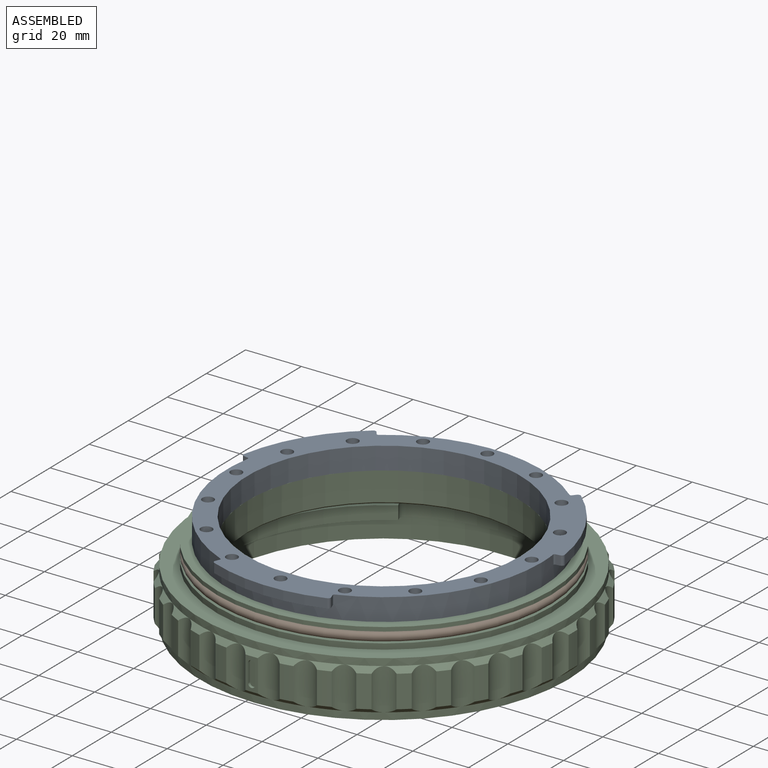
[diagram: assembled view]
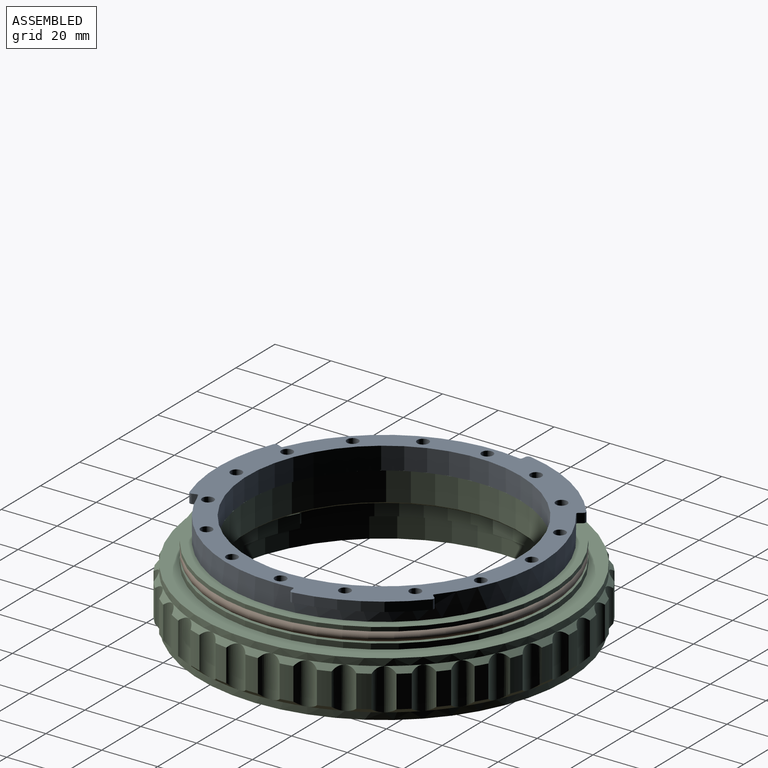
[diagram: assembled view, second angle]
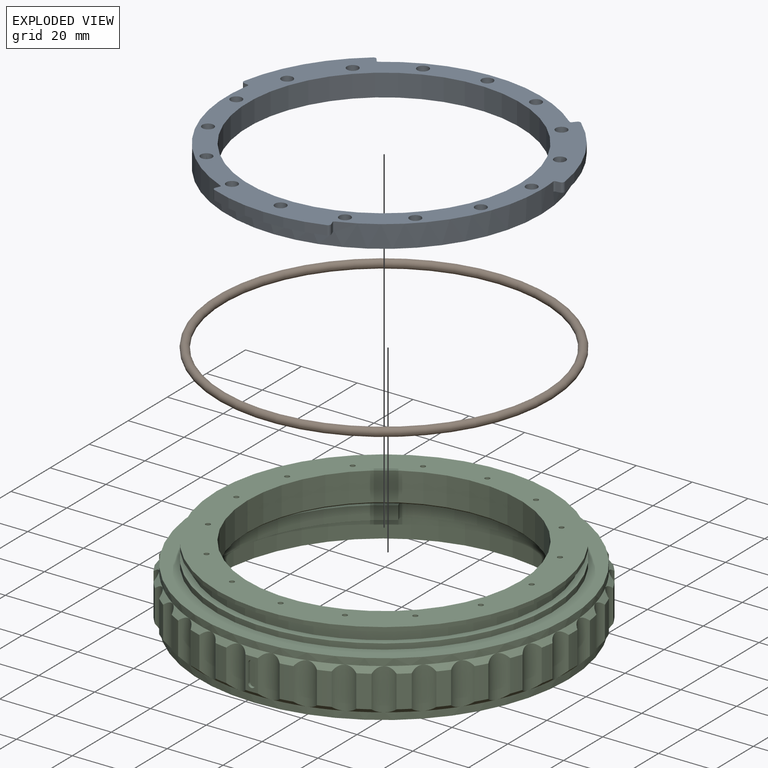
[diagram: exploded view]
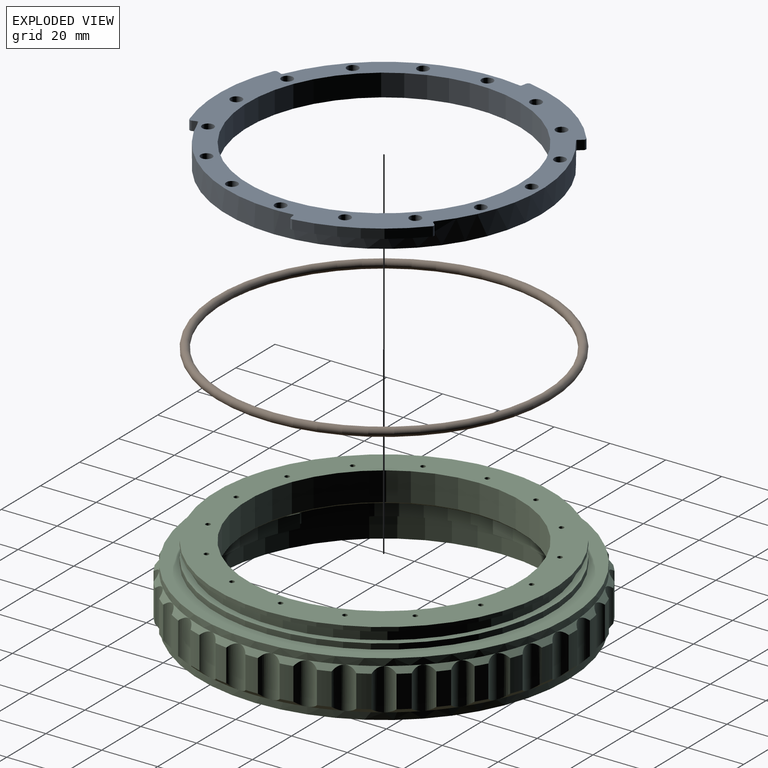
[diagram: exploded view, second angle]
ASSEMBLY  parts=3 mates=4
PART A: 76 faces, bbox 117.3x115.9x8 mm
  f0: plane 42.5x7.72mm, normal (0,0,-1), area 132.9mm2, adj f4,f8,f58,f63,f65,f68,f71,f74
  f1: cylinder r=59.5mm len=35.1mm, axis (0,0,-1), area 141mm2, adj f3,f7,f64,f67
  f2: cylinder r=59.5mm len=36.25mm, axis (0,0,-1), area 141mm2, adj f7,f9,f66,f69
  f3: plane 37.36x24.69mm, normal (0,0,-1), area 132.9mm2, adj f1,f4,f61,f62,f64,f67,f70,f73
  f4: cylinder r=56.4mm len=112.8mm, axis (0,0,-1), area 2404.8mm2, adj f0,f3,f5,f7,f9,f70,f71,f72
  f5: plane 112.8x112.8mm, normal (0,0,-1), area 2404.8mm2, adj f4,f6,f10,f13,f16,f19,f22,f25
  f6: cylinder r=48.85mm len=97.7mm, axis (0,0,-1), area 2455.5mm2, adj f5,f7
  f7: plane 117.27x115.9mm, normal (0,0,1), area 2683.8mm2, adj f1,f2,f4,f6,f8,f12,f15,f18
  f8: cylinder r=59.5mm len=41.19mm, axis (0,0,-1), area 141mm2, adj f0,f7,f65,f68
  f9: plane 38.38x22.77mm, normal (0,0,-1), area 132.9mm2, adj f2,f4,f59,f60,f66,f69,f72,f75
  f10: cylinder r=1.35mm len=4.2mm, axis (0,0,1), area 35.6mm2, adj f5,f11
  f11: plane 4.1x4.1mm, normal (0,0,1), area 7.5mm2, adj f10,f12
  f12: cylinder r=2.05mm len=4.1mm, axis (0,0,1), area 48.9mm2, adj f7,f11
  f13: cylinder r=1.35mm len=4.2mm, axis (0,0,1), area 35.6mm2, adj f5,f14
  f14: plane 4.1x4.1mm, normal (0,0,1), area 7.5mm2, adj f13,f15
  f15: cylinder r=2.05mm len=4.1mm, axis (0,0,1), area 48.9mm2, adj f7,f14
  f16: cylinder r=1.35mm len=4.2mm, axis (0,0,1), area 35.6mm2, adj f5,f17
  f17: plane 4.1x4.1mm, normal (0,0,1), area 7.5mm2, adj f16,f18
  f18: cylinder r=2.05mm len=4.1mm, axis (0,0,1), area 48.9mm2, adj f7,f17
  f19: cylinder r=1.35mm len=4.2mm, axis (0,0,1), area 35.6mm2, adj f5,f20
  f20: plane 4.1x4.1mm, normal (0,0,1), area 7.5mm2, adj f19,f21
  f21: cylinder r=2.05mm len=4.1mm, axis (0,0,1), area 48.9mm2, adj f7,f20
  f22: cylinder r=1.35mm len=4.2mm, axis (0,0,1), area 35.6mm2, adj f5,f23
  f23: plane 4.1x4.1mm, normal (0,0,1), area 7.5mm2, adj f22,f24
  f24: cylinder r=2.05mm len=4.1mm, axis (0,0,1), area 48.9mm2, adj f7,f23
  f25: cylinder r=1.35mm len=4.2mm, axis (0,0,1), area 35.6mm2, adj f5,f26
  f26: plane 4.1x4.1mm, normal (0,0,1), area 7.5mm2, adj f25,f27
  f27: cylinder r=2.05mm len=4.1mm, axis (0,0,1), area 48.9mm2, adj f7,f26
  f28: cylinder r=1.35mm len=4.2mm, axis (0,0,1), area 35.6mm2, adj f5,f29
  f29: plane 4.1x4.1mm, normal (0,0,1), area 7.5mm2, adj f28,f30
  f30: cylinder r=2.05mm len=4.1mm, axis (0,0,1), area 48.9mm2, adj f7,f29
  f31: cylinder r=1.35mm len=4.2mm, axis (0,0,1), area 35.6mm2, adj f5,f32
  f32: plane 4.1x4.1mm, normal (0,0,1), area 7.5mm2, adj f31,f33
  f33: cylinder r=2.05mm len=4.1mm, axis (0,0,1), area 48.9mm2, adj f7,f32
  f34: cylinder r=1.35mm len=4.2mm, axis (0,0,1), area 35.6mm2, adj f5,f35
  f35: plane 4.1x4.1mm, normal (0,0,1), area 7.5mm2, adj f34,f36
  f36: cylinder r=2.05mm len=4.1mm, axis (0,0,1), area 48.9mm2, adj f7,f35
  f37: cylinder r=1.35mm len=4.2mm, axis (0,0,1), area 35.6mm2, adj f5,f38
  f38: plane 4.1x4.1mm, normal (0,0,1), area 7.5mm2, adj f37,f39
  f39: cylinder r=2.05mm len=4.1mm, axis (0,0,1), area 48.9mm2, adj f7,f38
  f40: cylinder r=1.35mm len=4.2mm, axis (0,0,1), area 35.6mm2, adj f5,f41
  f41: plane 4.1x4.1mm, normal (0,0,1), area 7.5mm2, adj f40,f42
  f42: cylinder r=2.05mm len=4.1mm, axis (0,0,1), area 48.9mm2, adj f7,f41
  f43: cylinder r=1.35mm len=4.2mm, axis (0,0,1), area 35.6mm2, adj f5,f44
  f44: plane 4.1x4.1mm, normal (0,0,1), area 7.5mm2, adj f43,f45
  f45: cylinder r=2.05mm len=4.1mm, axis (0,0,1), area 48.9mm2, adj f7,f44
  f46: cylinder r=1.35mm len=4.2mm, axis (0,0,1), area 35.6mm2, adj f5,f47
  f47: plane 4.1x4.1mm, normal (0,0,1), area 7.5mm2, adj f46,f48
  f48: cylinder r=2.05mm len=4.1mm, axis (0,0,1), area 48.9mm2, adj f7,f47
  f49: cylinder r=1.35mm len=4.2mm, axis (0,0,1), area 35.6mm2, adj f5,f50
  f50: plane 4.1x4.1mm, normal (0,0,1), area 7.5mm2, adj f49,f51
  f51: cylinder r=2.05mm len=4.1mm, axis (0,0,1), area 48.9mm2, adj f7,f50
  f52: cylinder r=1.35mm len=4.2mm, axis (0,0,1), area 35.6mm2, adj f5,f53
  f53: plane 4.1x4.1mm, normal (0,0,1), area 7.5mm2, adj f52,f54
  f54: cylinder r=2.05mm len=4.1mm, axis (0,0,1), area 48.9mm2, adj f7,f53
  f55: cylinder r=1.35mm len=4.2mm, axis (0,0,1), area 35.6mm2, adj f5,f56
  f56: plane 4.1x4.1mm, normal (0,0,1), area 7.5mm2, adj f55,f57
  f57: cylinder r=2.05mm len=4.1mm, axis (0,0,1), area 48.9mm2, adj f7,f56
  f58: plane 3.35x1.5mm, normal (-0.94,-0.34,0), area 5.3mm2, adj f0,f7,f68,f74
  f59: plane 3.35x1.58mm, normal (-0.12,0.99,0), area 5.3mm2, adj f7,f9,f69,f75
  f60: plane 3.35x1.21mm, normal (0.76,-0.65,0), area 5.3mm2, adj f7,f9,f66,f72
  f61: plane 3.35x1.27mm, normal (-0.8,-0.6,0), area 5.3mm2, adj f3,f7,f67,f73
  f62: plane 3.35x1.57mm, normal (0.18,0.98,0), area 5.3mm2, adj f3,f7,f64,f70
  f63: plane 3.35x1.47mm, normal (0.92,-0.39,0), area 5.3mm2, adj f0,f7,f65,f71
  f64: cylinder r=1mm len=3.35mm, axis (0,0,-1), area 5.3mm2, adj f1,f3,f7,f62
  f65: cylinder r=1mm len=3.35mm, axis (0,0,-1), area 5.3mm2, adj f0,f7,f8,f63
  f66: cylinder r=1mm len=3.35mm, axis (0,0,-1), area 5.3mm2, adj f2,f7,f9,f60
  f67: cylinder r=1mm len=3.35mm, axis (0,0,-1), area 5.3mm2, adj f1,f3,f7,f61
  f68: cylinder r=1mm len=3.35mm, axis (0,0,-1), area 5.3mm2, adj f0,f7,f8,f58
  f69: cylinder r=1mm len=3.35mm, axis (0,0,-1), area 5.3mm2, adj f2,f7,f9,f59
  f70: cylinder r=0.5mm len=3.35mm, axis (0,0,-1), area 2.6mm2, adj f3,f4,f7,f62
  f71: cylinder r=0.5mm len=3.35mm, axis (0,0,-1), area 2.6mm2, adj f0,f4,f7,f63
  f72: cylinder r=0.5mm len=3.35mm, axis (0,0,-1), area 2.6mm2, adj f4,f7,f9,f60
  f73: cylinder r=0.5mm len=3.35mm, axis (0,0,-1), area 2.6mm2, adj f3,f4,f7,f61
  f74: cylinder r=0.5mm len=3.35mm, axis (0,0,-1), area 2.6mm2, adj f0,f4,f7,f58
  f75: cylinder r=0.5mm len=3.35mm, axis (0,0,-1), area 2.6mm2, adj f4,f7,f9,f59
PART B: 1 faces, bbox 129.9x129.9x3 mm
  f0: torus R=58.5mm, axis (0,0,1), area 3464.2mm2
PART C: 219 faces, bbox 135.5x135.5x27.3 mm
  f0: cylinder r=67.75mm len=11.5mm, axis (0,0,-1), area 30.3mm2, adj f110,f111,f159,f160,f214,f215,f217,f218
  f1: plane 120.3x120.3mm, normal (0,0,-1), area 727.9mm2, adj f2,f3,f4,f122,f195,f196,f197,f198
  f2: cylinder r=56.75mm len=49.5mm, axis (0,0,-1), area 290.6mm2, adj f1,f123,f197,f201
  f3: cylinder r=56.75mm len=48.78mm, axis (0,0,-1), area 290.6mm2, adj f1,f123,f198,f203
  f4: cylinder r=56.75mm len=56.75mm, axis (0,0,-1), area 290.6mm2, adj f1,f123,f195,f200
  f5: cylinder r=67.75mm len=11.5mm, axis (0,0,-1), area 51.4mm2, adj f7,f8,f159,f194
  f6: cone r=67.75mm half-angle=45deg, axis (0,0,-1), area 16.3mm2, adj f10,f112,f193,f194
  f7: cone r=67.75mm half-angle=45deg, axis (0,0,-1), area 16.3mm2, adj f5,f112,f159,f194
  f8: cone r=66mm half-angle=45deg, axis (0,0,1), area 16.3mm2, adj f5,f120,f159,f194
  f9: cone r=66mm half-angle=45deg, axis (0,0,1), area 16.3mm2, adj f10,f120,f193,f194
  f10: cylinder r=67.75mm len=11.5mm, axis (0,0,-1), area 51.4mm2, adj f6,f9,f193,f194
  f11: cone r=67.75mm half-angle=45deg, axis (0,0,-1), area 16.3mm2, adj f13,f112,f192,f193
  f12: cone r=66mm half-angle=45deg, axis (0,0,1), area 16.3mm2, adj f13,f120,f192,f193
  f13: cylinder r=67.75mm len=11.5mm, axis (0,0,-1), area 51.4mm2, adj f11,f12,f192,f193
  f14: cone r=67.75mm half-angle=45deg, axis (0,0,-1), area 16.3mm2, adj f16,f112,f191,f192
  f15: cone r=66mm half-angle=45deg, axis (0,0,1), area 16.3mm2, adj f16,f120,f191,f192
  f16: cylinder r=67.75mm len=11.5mm, axis (0,0,-1), area 51.4mm2, adj f14,f15,f191,f192
  f17: cone r=67.75mm half-angle=45deg, axis (0,0,-1), area 16.3mm2, adj f19,f112,f190,f191
  f18: cone r=66mm half-angle=45deg, axis (0,0,1), area 16.3mm2, adj f19,f120,f190,f191
  f19: cylinder r=67.75mm len=11.5mm, axis (0,0,-1), area 51.4mm2, adj f17,f18,f190,f191
  f20: cone r=67.75mm half-angle=45deg, axis (0,0,-1), area 16.3mm2, adj f22,f112,f189,f190
  f21: cone r=66mm half-angle=45deg, axis (0,0,1), area 16.3mm2, adj f22,f120,f189,f190
  f22: cylinder r=67.75mm len=11.5mm, axis (0,0,-1), area 51.4mm2, adj f20,f21,f189,f190
  f23: cone r=67.75mm half-angle=45deg, axis (0,0,-1), area 16.3mm2, adj f25,f112,f188,f189
  f24: cone r=66mm half-angle=45deg, axis (0,0,1), area 16.3mm2, adj f25,f120,f188,f189
  f25: cylinder r=67.75mm len=11.5mm, axis (0,0,-1), area 51.4mm2, adj f23,f24,f188,f189
  f26: cone r=67.75mm half-angle=45deg, axis (0,0,-1), area 16.3mm2, adj f28,f112,f187,f188
  f27: cone r=66mm half-angle=45deg, axis (0,0,1), area 16.3mm2, adj f28,f120,f187,f188
  f28: cylinder r=67.75mm len=11.5mm, axis (0,0,-1), area 51.4mm2, adj f26,f27,f187,f188
  f29: cone r=67.75mm half-angle=45deg, axis (0,0,-1), area 16.3mm2, adj f31,f112,f186,f187
  f30: cone r=66mm half-angle=45deg, axis (0,0,1), area 16.3mm2, adj f31,f120,f186,f187
  f31: cylinder r=67.75mm len=11.5mm, axis (0,0,-1), area 51.4mm2, adj f29,f30,f186,f187
  f32: cone r=67.75mm half-angle=45deg, axis (0,0,-1), area 16.3mm2, adj f34,f112,f185,f186
  f33: cone r=66mm half-angle=45deg, axis (0,0,1), area 16.3mm2, adj f34,f120,f185,f186
  f34: cylinder r=67.75mm len=11.5mm, axis (0,0,-1), area 51.4mm2, adj f32,f33,f185,f186
  f35: cone r=67.75mm half-angle=45deg, axis (0,0,-1), area 16.3mm2, adj f37,f112,f184,f185
  f36: cone r=66mm half-angle=45deg, axis (0,0,1), area 16.3mm2, adj f37,f120,f184,f185
  f37: cylinder r=67.75mm len=11.5mm, axis (0,0,-1), area 51.4mm2, adj f35,f36,f184,f185
  f38: cone r=67.75mm half-angle=45deg, axis (0,0,-1), area 16.3mm2, adj f40,f112,f183,f184
  f39: cone r=66mm half-angle=45deg, axis (0,0,1), area 16.3mm2, adj f40,f120,f183,f184
  f40: cylinder r=67.75mm len=11.5mm, axis (0,0,-1), area 51.4mm2, adj f38,f39,f183,f184
  f41: cone r=67.75mm half-angle=45deg, axis (0,0,-1), area 16.3mm2, adj f43,f112,f182,f183
  f42: cone r=66mm half-angle=45deg, axis (0,0,1), area 16.3mm2, adj f43,f120,f182,f183
  f43: cylinder r=67.75mm len=11.5mm, axis (0,0,-1), area 51.4mm2, adj f41,f42,f182,f183
  f44: cone r=67.75mm half-angle=45deg, axis (0,0,-1), area 16.3mm2, adj f46,f112,f181,f182
  f45: cone r=66mm half-angle=45deg, axis (0,0,1), area 16.3mm2, adj f46,f120,f181,f182
  f46: cylinder r=67.75mm len=11.5mm, axis (0,0,-1), area 51.4mm2, adj f44,f45,f181,f182
  f47: cone r=67.75mm half-angle=45deg, axis (0,0,-1), area 16.3mm2, adj f49,f112,f180,f181
  f48: cone r=66mm half-angle=45deg, axis (0,0,1), area 16.3mm2, adj f49,f120,f180,f181
  f49: cylinder r=67.75mm len=11.5mm, axis (0,0,-1), area 51.4mm2, adj f47,f48,f180,f181
  f50: cone r=67.75mm half-angle=45deg, axis (0,0,-1), area 16.3mm2, adj f52,f112,f179,f180
  f51: cone r=66mm half-angle=45deg, axis (0,0,1), area 16.3mm2, adj f52,f120,f179,f180
  f52: cylinder r=67.75mm len=11.5mm, axis (0,0,-1), area 51.4mm2, adj f50,f51,f179,f180
  f53: cone r=67.75mm half-angle=45deg, axis (0,0,-1), area 16.3mm2, adj f55,f112,f178,f179
  f54: cone r=66mm half-angle=45deg, axis (0,0,1), area 16.3mm2, adj f55,f120,f178,f179
  f55: cylinder r=67.75mm len=11.5mm, axis (0,0,-1), area 51.4mm2, adj f53,f54,f178,f179
  f56: cone r=67.75mm half-angle=45deg, axis (0,0,-1), area 16.3mm2, adj f58,f112,f177,f178
  f57: cone r=66mm half-angle=45deg, axis (0,0,1), area 16.3mm2, adj f58,f120,f177,f178
  f58: cylinder r=67.75mm len=11.5mm, axis (0,0,-1), area 51.4mm2, adj f56,f57,f177,f178
  f59: cone r=67.75mm half-angle=45deg, axis (0,0,-1), area 16.3mm2, adj f61,f112,f176,f177
  f60: cone r=66mm half-angle=45deg, axis (0,0,1), area 16.3mm2, adj f61,f120,f176,f177
  f61: cylinder r=67.75mm len=11.5mm, axis (0,0,-1), area 51.4mm2, adj f59,f60,f176,f177
  f62: cone r=67.75mm half-angle=45deg, axis (0,0,-1), area 16.3mm2, adj f64,f112,f175,f176
  f63: cone r=66mm half-angle=45deg, axis (0,0,1), area 16.3mm2, adj f64,f120,f175,f176
  f64: cylinder r=67.75mm len=11.5mm, axis (0,0,-1), area 51.4mm2, adj f62,f63,f175,f176
  f65: cone r=67.75mm half-angle=45deg, axis (0,0,-1), area 16.3mm2, adj f67,f112,f174,f175
  f66: cone r=66mm half-angle=45deg, axis (0,0,1), area 16.3mm2, adj f67,f120,f174,f175
  f67: cylinder r=67.75mm len=11.5mm, axis (0,0,-1), area 51.4mm2, adj f65,f66,f174,f175
  f68: cone r=67.75mm half-angle=45deg, axis (0,0,-1), area 16.3mm2, adj f70,f112,f173,f174
  f69: cone r=66mm half-angle=45deg, axis (0,0,1), area 16.3mm2, adj f70,f120,f173,f174
  f70: cylinder r=67.75mm len=11.5mm, axis (0,0,-1), area 51.4mm2, adj f68,f69,f173,f174
  f71: cone r=67.75mm half-angle=45deg, axis (0,0,-1), area 16.3mm2, adj f73,f112,f172,f173
  f72: cone r=66mm half-angle=45deg, axis (0,0,1), area 16.3mm2, adj f73,f120,f172,f173
  f73: cylinder r=67.75mm len=11.5mm, axis (0,0,-1), area 51.4mm2, adj f71,f72,f172,f173
  f74: cone r=67.75mm half-angle=45deg, axis (0,0,-1), area 16.3mm2, adj f76,f112,f171,f172
  f75: cone r=66mm half-angle=45deg, axis (0,0,1), area 16.3mm2, adj f76,f120,f171,f172
  f76: cylinder r=67.75mm len=11.5mm, axis (0,0,-1), area 51.4mm2, adj f74,f75,f171,f172
  f77: cone r=67.75mm half-angle=45deg, axis (0,0,-1), area 16.3mm2, adj f79,f112,f170,f171
  f78: cone r=66mm half-angle=45deg, axis (0,0,1), area 16.3mm2, adj f79,f120,f170,f171
  f79: cylinder r=67.75mm len=11.5mm, axis (0,0,-1), area 51.4mm2, adj f77,f78,f170,f171
  f80: cone r=67.75mm half-angle=45deg, axis (0,0,-1), area 16.3mm2, adj f82,f112,f169,f170
  f81: cone r=66mm half-angle=45deg, axis (0,0,1), area 16.3mm2, adj f82,f120,f169,f170
  f82: cylinder r=67.75mm len=11.5mm, axis (0,0,-1), area 51.4mm2, adj f80,f81,f169,f170
  f83: cone r=67.75mm half-angle=45deg, axis (0,0,-1), area 16.3mm2, adj f85,f112,f168,f169
  f84: cone r=66mm half-angle=45deg, axis (0,0,1), area 16.3mm2, adj f85,f120,f168,f169
  f85: cylinder r=67.75mm len=11.5mm, axis (0,0,-1), area 51.4mm2, adj f83,f84,f168,f169
  f86: cone r=67.75mm half-angle=45deg, axis (0,0,-1), area 16.3mm2, adj f88,f112,f167,f168
  f87: cone r=66mm half-angle=45deg, axis (0,0,1), area 16.3mm2, adj f88,f120,f167,f168
  f88: cylinder r=67.75mm len=11.5mm, axis (0,0,-1), area 51.4mm2, adj f86,f87,f167,f168
  f89: cone r=67.75mm half-angle=45deg, axis (0,0,-1), area 16.3mm2, adj f91,f112,f166,f167
  f90: cone r=66mm half-angle=45deg, axis (0,0,1), area 16.3mm2, adj f91,f120,f166,f167
  f91: cylinder r=67.75mm len=11.5mm, axis (0,0,-1), area 51.4mm2, adj f89,f90,f166,f167
  f92: cone r=67.75mm half-angle=45deg, axis (0,0,-1), area 16.3mm2, adj f94,f112,f165,f166
  f93: cone r=66mm half-angle=45deg, axis (0,0,1), area 16.3mm2, adj f94,f120,f165,f166
  f94: cylinder r=67.75mm len=11.5mm, axis (0,0,-1), area 51.4mm2, adj f92,f93,f165,f166
  f95: cone r=67.75mm half-angle=45deg, axis (0,0,-1), area 16.3mm2, adj f97,f112,f164,f165
  f96: cone r=66mm half-angle=45deg, axis (0,0,1), area 16.3mm2, adj f97,f120,f164,f165
  f97: cylinder r=67.75mm len=11.5mm, axis (0,0,-1), area 51.4mm2, adj f95,f96,f164,f165
  f98: cone r=67.75mm half-angle=45deg, axis (0,0,-1), area 16.3mm2, adj f100,f112,f163,f164
  f99: cone r=66mm half-angle=45deg, axis (0,0,1), area 16.3mm2, adj f100,f120,f163,f164
  f100: cylinder r=67.75mm len=11.5mm, axis (0,0,-1), area 51.4mm2, adj f98,f99,f163,f164
  f101: cone r=67.75mm half-angle=45deg, axis (0,0,-1), area 16.3mm2, adj f103,f112,f162,f163
  f102: cone r=66mm half-angle=45deg, axis (0,0,1), area 16.3mm2, adj f103,f120,f162,f163
  f103: cylinder r=67.75mm len=11.5mm, axis (0,0,-1), area 51.4mm2, adj f101,f102,f162,f163
  f104: cone r=67.75mm half-angle=45deg, axis (0,0,-1), area 16.3mm2, adj f106,f112,f161,f162
  f105: cone r=66mm half-angle=45deg, axis (0,0,1), area 16.3mm2, adj f106,f120,f161,f162
  f106: cylinder r=67.75mm len=11.5mm, axis (0,0,-1), area 51.4mm2, adj f104,f105,f161,f162
  f107: cone r=67.75mm half-angle=45deg, axis (0,0,-1), area 16.3mm2, adj f109,f112,f160,f161
  f108: cone r=66mm half-angle=45deg, axis (0,0,1), area 16.3mm2, adj f109,f120,f160,f161
  f109: cylinder r=67.75mm len=11.5mm, axis (0,0,-1), area 51.4mm2, adj f107,f108,f160,f161
  f110: cone r=67.75mm half-angle=45deg, axis (0,0,-1), area 16.3mm2, adj f0,f112,f159,f160
  f111: cone r=66mm half-angle=45deg, axis (0,0,1), area 16.3mm2, adj f0,f120,f159,f160
  f112: cylinder r=66mm len=132mm, axis (0,0,-1), area 1036.7mm2, adj f6,f7,f11,f14,f17,f20,f23,f26
  f113: plane 120x120mm, normal (0,0,1), area 3759mm2, adj f114,f126,f128,f130,f132,f134,f136,f138
  f114: cylinder r=60mm len=120mm, axis (0,0,-1), area 546.6mm2, adj f113,f115
  f115: plane 120x120mm, normal (0,0,-1), area 850.5mm2, adj f114,f116
  f116: cylinder r=57.7mm len=115.4mm, axis (0,0,-1), area 1395.8mm2, adj f115,f117
  f117: plane 120x120mm, normal (0,0,1), area 850.5mm2, adj f116,f118
  f118: cylinder r=60mm len=120mm, axis (0,0,-1), area 754mm2, adj f117,f119
  f119: plane 132x132mm, normal (0,0,1), area 2375mm2, adj f112,f118
  f120: cylinder r=66mm len=132mm, axis (0,0,-1), area 1036.7mm2, adj f8,f9,f12,f15,f18,f21,f24,f27
  f121: plane 132x132mm, normal (0,0,-1), area 2318.4mm2, adj f120,f122
  f122: cylinder r=60.15mm len=120.3mm, axis (0,0,-1), area 2834.5mm2, adj f1,f121
  f123: plane 120.3x120.3mm, normal (0,0,1), area 727.9mm2, adj f2,f3,f4,f124,f195,f196,f197,f198
  f124: cylinder r=60.15mm len=120.3mm, axis (0,0,-1), area 1553.2mm2, adj f123,f125
  f125: plane 120.3x120.3mm, normal (0,0,-1), area 3699.7mm2, adj f124,f213
  f126: cylinder r=48.9mm len=97.8mm, axis (0,0,-1), area 3164.7mm2, adj f113,f213
  f127: cone r=0mm half-angle=59deg, axis (0,0,1), area 2.8mm2, adj f128
  f128: cylinder r=0.88mm len=8mm, axis (0,0,1), area 44mm2, adj f113,f127
  f129: cone r=0mm half-angle=59deg, axis (0,0,1), area 2.8mm2, adj f130
  f130: cylinder r=0.88mm len=8mm, axis (0,0,1), area 44mm2, adj f113,f129
  f131: cone r=0mm half-angle=59deg, axis (0,0,1), area 2.8mm2, adj f132
  f132: cylinder r=0.88mm len=8mm, axis (0,0,1), area 44mm2, adj f113,f131
  f133: cone r=0mm half-angle=59deg, axis (0,0,1), area 2.8mm2, adj f134
  f134: cylinder r=0.88mm len=8mm, axis (0,0,1), area 44mm2, adj f113,f133
  f135: cone r=0mm half-angle=59deg, axis (0,0,1), area 2.8mm2, adj f136
  f136: cylinder r=0.88mm len=8mm, axis (0,0,1), area 44mm2, adj f113,f135
  f137: cone r=0mm half-angle=59deg, axis (0,0,1), area 2.8mm2, adj f138
  f138: cylinder r=0.88mm len=8mm, axis (0,0,1), area 44mm2, adj f113,f137
  f139: cone r=0mm half-angle=59deg, axis (0,0,1), area 2.8mm2, adj f140
  f140: cylinder r=0.88mm len=8mm, axis (0,0,1), area 44mm2, adj f113,f139
  f141: cone r=0mm half-angle=59deg, axis (0,0,1), area 2.8mm2, adj f142
  f142: cylinder r=0.88mm len=8mm, axis (0,0,1), area 44mm2, adj f113,f141
  f143: cone r=0mm half-angle=59deg, axis (0,0,1), area 2.8mm2, adj f144
  f144: cylinder r=0.88mm len=8mm, axis (0,0,1), area 44mm2, adj f113,f143
  f145: cone r=0mm half-angle=59deg, axis (0,0,1), area 2.8mm2, adj f146
  f146: cylinder r=0.88mm len=8mm, axis (0,0,1), area 44mm2, adj f113,f145
  f147: cone r=0mm half-angle=59deg, axis (0,0,1), area 2.8mm2, adj f148
  f148: cylinder r=0.88mm len=8mm, axis (0,0,1), area 44mm2, adj f113,f147
  f149: cone r=0mm half-angle=59deg, axis (0,0,1), area 2.8mm2, adj f150
  f150: cylinder r=0.88mm len=8mm, axis (0,0,1), area 44mm2, adj f113,f149
  f151: cone r=0mm half-angle=59deg, axis (0,0,1), area 2.8mm2, adj f152
  f152: cylinder r=0.88mm len=8mm, axis (0,0,1), area 44mm2, adj f113,f151
  f153: cone r=0mm half-angle=59deg, axis (0,0,1), area 2.8mm2, adj f154
  f154: cylinder r=0.88mm len=8mm, axis (0,0,1), area 44mm2, adj f113,f153
  f155: cone r=0mm half-angle=59deg, axis (0,0,1), area 2.8mm2, adj f156
  f156: cylinder r=0.88mm len=8mm, axis (0,0,1), area 44mm2, adj f113,f155
  f157: cone r=0mm half-angle=59deg, axis (0,0,1), area 2.8mm2, adj f158
  f158: cylinder r=0.88mm len=8mm, axis (0,0,1), area 44mm2, adj f113,f157
  f159: cylinder r=4.92mm len=15mm, axis (0,0,-1), area 114.5mm2, adj f0,f5,f7,f8,f110,f111
  f160: cylinder r=4.92mm len=15mm, axis (0,0,-1), area 114.5mm2, adj f0,f107,f108,f109,f110,f111
  f161: cylinder r=4.92mm len=15mm, axis (0,0,-1), area 114.5mm2, adj f104,f105,f106,f107,f108,f109
  f162: cylinder r=4.92mm len=15mm, axis (0,0,-1), area 114.5mm2, adj f101,f102,f103,f104,f105,f106
  f163: cylinder r=4.92mm len=15mm, axis (0,0,-1), area 114.5mm2, adj f98,f99,f100,f101,f102,f103
  f164: cylinder r=4.92mm len=15mm, axis (0,0,-1), area 114.5mm2, adj f95,f96,f97,f98,f99,f100
  f165: cylinder r=4.92mm len=15mm, axis (0,0,-1), area 114.5mm2, adj f92,f93,f94,f95,f96,f97
  f166: cylinder r=4.92mm len=15mm, axis (0,0,-1), area 114.5mm2, adj f89,f90,f91,f92,f93,f94
  f167: cylinder r=4.92mm len=15mm, axis (0,0,-1), area 114.5mm2, adj f86,f87,f88,f89,f90,f91
  f168: cylinder r=4.92mm len=15mm, axis (0,0,-1), area 114.5mm2, adj f83,f84,f85,f86,f87,f88
  f169: cylinder r=4.92mm len=15mm, axis (0,0,-1), area 114.5mm2, adj f80,f81,f82,f83,f84,f85
  f170: cylinder r=4.92mm len=15mm, axis (0,0,-1), area 114.5mm2, adj f77,f78,f79,f80,f81,f82
  f171: cylinder r=4.92mm len=15mm, axis (0,0,-1), area 114.5mm2, adj f74,f75,f76,f77,f78,f79
  f172: cylinder r=4.92mm len=15mm, axis (0,0,-1), area 114.5mm2, adj f71,f72,f73,f74,f75,f76
  f173: cylinder r=4.92mm len=15mm, axis (0,0,-1), area 114.5mm2, adj f68,f69,f70,f71,f72,f73
  f174: cylinder r=4.92mm len=15mm, axis (0,0,-1), area 114.5mm2, adj f65,f66,f67,f68,f69,f70
  f175: cylinder r=4.92mm len=15mm, axis (0,0,-1), area 114.5mm2, adj f62,f63,f64,f65,f66,f67
  f176: cylinder r=4.92mm len=15mm, axis (0,0,-1), area 114.5mm2, adj f59,f60,f61,f62,f63,f64
  f177: cylinder r=4.92mm len=15mm, axis (0,0,-1), area 114.5mm2, adj f56,f57,f58,f59,f60,f61
  f178: cylinder r=4.92mm len=15mm, axis (0,0,-1), area 114.5mm2, adj f53,f54,f55,f56,f57,f58
  f179: cylinder r=4.92mm len=15mm, axis (0,0,-1), area 114.5mm2, adj f50,f51,f52,f53,f54,f55
  f180: cylinder r=4.92mm len=15mm, axis (0,0,-1), area 114.5mm2, adj f47,f48,f49,f50,f51,f52
  f181: cylinder r=4.92mm len=15mm, axis (0,0,-1), area 114.5mm2, adj f44,f45,f46,f47,f48,f49
  f182: cylinder r=4.92mm len=15mm, axis (0,0,-1), area 114.5mm2, adj f41,f42,f43,f44,f45,f46
  f183: cylinder r=4.92mm len=15mm, axis (0,0,-1), area 114.5mm2, adj f38,f39,f40,f41,f42,f43
  f184: cylinder r=4.92mm len=15mm, axis (0,0,-1), area 114.5mm2, adj f35,f36,f37,f38,f39,f40
  f185: cylinder r=4.92mm len=15mm, axis (0,0,-1), area 114.5mm2, adj f32,f33,f34,f35,f36,f37
  f186: cylinder r=4.92mm len=15mm, axis (0,0,-1), area 114.5mm2, adj f29,f30,f31,f32,f33,f34
  f187: cylinder r=4.92mm len=15mm, axis (0,0,-1), area 114.5mm2, adj f26,f27,f28,f29,f30,f31
  f188: cylinder r=4.92mm len=15mm, axis (0,0,-1), area 114.5mm2, adj f23,f24,f25,f26,f27,f28
  f189: cylinder r=4.92mm len=15mm, axis (0,0,-1), area 114.5mm2, adj f20,f21,f22,f23,f24,f25
  f190: cylinder r=4.92mm len=15mm, axis (0,0,-1), area 114.5mm2, adj f17,f18,f19,f20,f21,f22
  f191: cylinder r=4.92mm len=15mm, axis (0,0,-1), area 114.5mm2, adj f14,f15,f16,f17,f18,f19
  f192: cylinder r=4.92mm len=15mm, axis (0,0,-1), area 114.5mm2, adj f11,f12,f13,f14,f15,f16
  f193: cylinder r=4.92mm len=15mm, axis (0,0,-1), area 114.5mm2, adj f6,f9,f10,f11,f12,f13
  f194: cylinder r=4.92mm len=15mm, axis (0,0,-1), area 114.5mm2, adj f5,f6,f7,f8,f9,f10
  f195: plane 4.89x0.71mm, normal (-0.87,0.49,0), area 4mm2, adj f1,f4,f123,f208
  f196: cylinder r=59.6mm len=48.12mm, axis (0,0,-1), area 285mm2, adj f1,f123,f208,f209
  f197: plane 4.89x0.82mm, normal (0.01,-1,0), area 4mm2, adj f1,f2,f123,f209
  f198: plane 4.89x0.82mm, normal (0.01,-1,0), area 4mm2, adj f1,f3,f123,f206
  f199: cylinder r=59.6mm len=48.83mm, axis (0,0,-1), area 285mm2, adj f1,f123,f206,f207
  f200: plane 4.89x0.7mm, normal (0.86,0.51,0), area 4mm2, adj f1,f4,f123,f207
  f201: plane 4.89x0.7mm, normal (0.86,0.51,0), area 4mm2, adj f1,f2,f123,f204
  f202: cylinder r=59.6mm len=55.98mm, axis (0,0,-1), area 285mm2, adj f1,f123,f204,f205
  f203: plane 4.89x0.71mm, normal (-0.87,0.49,0), area 4mm2, adj f1,f3,f123,f205
  f204: cylinder r=2mm len=4.89mm, axis (0,0,-1), area 15.7mm2, adj f1,f123,f201,f202
  f205: cylinder r=2mm len=4.89mm, axis (0,0,-1), area 15.7mm2, adj f1,f123,f202,f203
  f206: cylinder r=2mm len=4.89mm, axis (0,0,-1), area 15.7mm2, adj f1,f123,f198,f199
  f207: cylinder r=2mm len=4.89mm, axis (0,0,-1), area 15.7mm2, adj f1,f123,f199,f200
  f208: cylinder r=2mm len=4.89mm, axis (0,0,-1), area 15.7mm2, adj f1,f123,f195,f196
  f209: cylinder r=2mm len=4.89mm, axis (0,0,-1), area 15.7mm2, adj f1,f123,f196,f197
  f210: cylinder r=0.75mm len=4.89mm, axis (0,0,-1), area 23mm2, adj f1,f123
  f211: cylinder r=0.75mm len=4.89mm, axis (0,0,-1), area 23mm2, adj f1,f123
  f212: cylinder r=0.75mm len=4.89mm, axis (0,0,-1), area 23mm2, adj f1,f123
  f213: cone r=48.9mm half-angle=45deg, axis (0,0,-1), area 218.4mm2, adj f125,f126
  f214: plane 6.5x0.99mm, normal (-1,0,0), area 6.4mm2, adj f0,f216,f217,f218
  f215: plane 6.5x0.99mm, normal (1,0,0), area 6.4mm2, adj f0,f216,f217,f218
  f216: plane 9x2.5mm, normal (0,-1,0), area 21.2mm2, adj f214,f215,f217,f218
  f217: cylinder r=1.25mm len=2.5mm, axis (0,1,0), area 3.9mm2, adj f0,f214,f215,f216
  f218: cylinder r=1.25mm len=2.5mm, axis (0,1,0), area 3.9mm2, adj f0,f214,f215,f216
PLACE A rot(axis=(0,0,1),180deg) t=(-13.51,1.67,33.82)mm
PLACE B rot(axis=(0,0,1),30.5deg) t=(-13.51,1.67,30.15)mm
PLACE C t=(-13.51,1.67,6.52)mm fixed
MATE cylindrical B.f0 <-> C.f0  axis (0,0,1) through (-13.51,1.67,30.15)mm
MATE planar A.f34 <-> C.f0  axis (0,0,-1) through (-13.51,54.57,33.82)mm
MATE revolute A.f10 <-> C.f143  axis (0,0,-1) through (-13.51,-51.23,33.82)mm
MATE cylindrical A.f1 <-> C.f0  axis (0,0,-1) through (-13.51,1.67,37.82)mm
